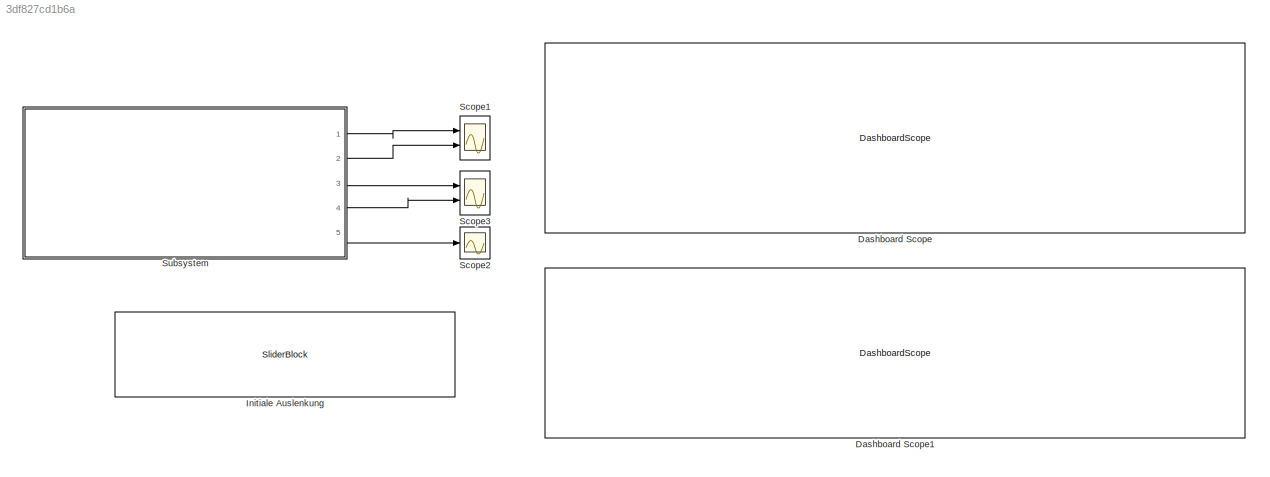
MODEL slx_3df827cd1b6a
KIND model
CONFIG AbsTol = auto
CONFIG EnableMultiTasking = off
CONFIG FixedStep = 0.01
CONFIG MaxStep = auto
CONFIG MinStep = auto
CONFIG RelTol = 1e-3
CONFIG SampleTimeConstraint = Unconstrained
CONFIG SolverName = FixedStepAuto
CONFIG StartTime = 0.0
CONFIG StopTime = 10
BLOCK [DashboardScope] Dashboard Scope
BLOCK [DashboardScope] Dashboard Scope1
BLOCK [SliderBlock] Initiale Auslenkung
  LabelPosition = Hide
  ScaleMax = 1.570796326794897
BLOCK [Scope] Scope1
  Floating = off
  NumInputPorts = 2
  Ports = [2]
  ScopeSpecificationString = Simulink.scopes.TimeScopeBlockCfg('CurrentConfiguration', extmgr.ConfigurationSet(extmgr.Configuration('Core','General UI',true),extmgr.Configuration('Core','Source UI',true),extmgr.Configuration('Sources','WiredSimulink',true,'DataLoggingVariableName','ScopeData1'),extmgr.Configuration('Visuals','Time Domain',true,'SerializedDisplays',{struct('MinYLimReal','-1.74473','MaxYLimReal','1.93919','YLab...<+1461ch>
BLOCK [Scope] Scope2
  Floating = off
  NumInputPorts = 1
  Ports = [1]
  ScopeSpecificationString = Simulink.scopes.TimeScopeBlockCfg('CurrentConfiguration', extmgr.ConfigurationSet(extmgr.Configuration('Core','General UI',true),extmgr.Configuration('Core','Source UI',true),extmgr.Configuration('Sources','WiredSimulink',true,'DataLoggingVariableName','ScopeData2'),extmgr.Configuration('Visuals','Time Domain',true),extmgr.Configuration('Tools','Plot Navigation',true),extmgr.Configuration('Tools',...<+40ch>
BLOCK [Scope] Scope3
  Floating = off
  NumInputPorts = 2
  Ports = [2]
  ScopeSpecificationString = Simulink.scopes.TimeScopeBlockCfg('CurrentConfiguration', extmgr.ConfigurationSet(extmgr.Configuration('Core','General UI',true),extmgr.Configuration('Core','Source UI',true),extmgr.Configuration('Sources','WiredSimulink',true),extmgr.Configuration('Visuals','Time Domain',true,'SerializedDisplays',{struct('MinYLimReal','-5.49798','MaxYLimReal','4.80628','YLabelReal','','MinYLimMag','0.00000','MaxY...<+1426ch>
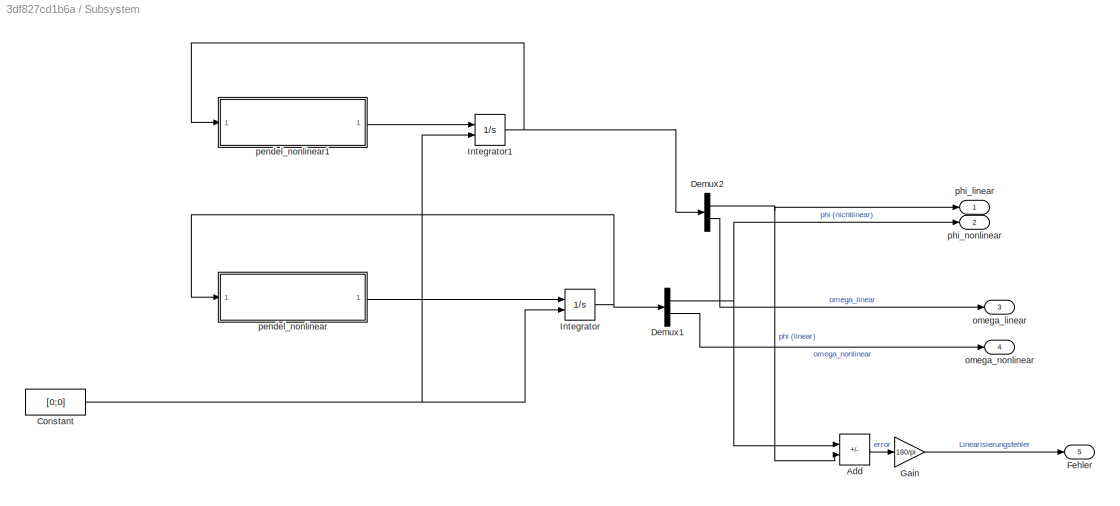
BLOCK [SubSystem] Subsystem
  Ports = [0, 5]
  RequestExecContextInheritance = off
BLOCK [Sum] Subsystem/Add
  IconShape = rectangular
  Inputs = +-
  Ports = [2, 1]
BLOCK [Constant] Subsystem/Constant
  Value = [0;0]
BLOCK [Demux] Subsystem/Demux1
  Outputs = 2
  Ports = [1, 2]
BLOCK [Demux] Subsystem/Demux2
  Outputs = 2
  Ports = [1, 2]
BLOCK [Outport] Subsystem/Fehler
  Port = 5
BLOCK [Gain] Subsystem/Gain
  Gain = 180/pi
BLOCK [Integrator] Subsystem/Integrator
  InitialCondition = [45*pi/180;0]
  InitialConditionSource = external
  Ports = [2, 1]
BLOCK [Integrator] Subsystem/Integrator1
  InitialCondition = [45*pi/180;0]
  InitialConditionSource = external
  Ports = [2, 1]
BLOCK [Outport] Subsystem/omega_linear
  Port = 3
BLOCK [Outport] Subsystem/omega_nonlinear
  Port = 4
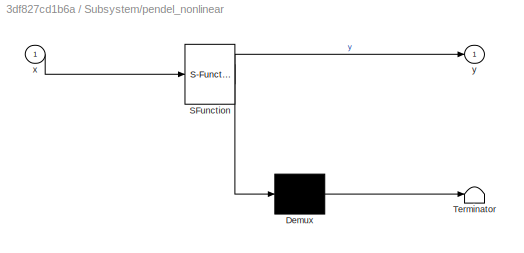
BLOCK [SubSystem] Subsystem/pendel_nonlinear
  ErrorFcn = Stateflow.Translate.translate
  PermitHierarchicalResolution = ExplicitOnly
  Ports = [1, 1]
  RequestExecContextInheritance = off
  SFBlockType = MATLAB Function
  TreatAsAtomicUnit = on
BLOCK [Demux] Subsystem/pendel_nonlinear/ Demux 
  Outputs = 1
  Ports = [1, 1]
BLOCK [S-Function] Subsystem/pendel_nonlinear/ SFunction 
  EnableBusSupport = on
  FunctionName = sf_sfun
  PortCounts = [1 2]
  Ports = [1, 2]
  SFcnIsStateOwnerBlock = off
  SFunctionDeploymentMode = off
  Tag = Stateflow S-Function 2
BLOCK [Terminator] Subsystem/pendel_nonlinear/ Terminator 
BLOCK [Inport] Subsystem/pendel_nonlinear/x
BLOCK [Outport] Subsystem/pendel_nonlinear/y
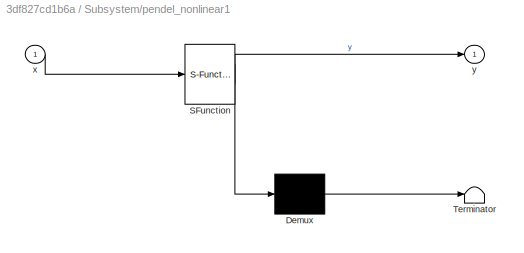
BLOCK [SubSystem] Subsystem/pendel_nonlinear1
  ErrorFcn = Stateflow.Translate.translate
  PermitHierarchicalResolution = ExplicitOnly
  Ports = [1, 1]
  RequestExecContextInheritance = off
  SFBlockType = MATLAB Function
  TreatAsAtomicUnit = on
BLOCK [Demux] Subsystem/pendel_nonlinear1/ Demux 
  Outputs = 1
  Ports = [1, 1]
BLOCK [S-Function] Subsystem/pendel_nonlinear1/ SFunction 
  EnableBusSupport = on
  FunctionName = sf_sfun
  PortCounts = [1 2]
  Ports = [1, 2]
  SFcnIsStateOwnerBlock = off
  SFunctionDeploymentMode = off
  Tag = Stateflow S-Function 1
BLOCK [Terminator] Subsystem/pendel_nonlinear1/ Terminator 
BLOCK [Inport] Subsystem/pendel_nonlinear1/x
BLOCK [Outport] Subsystem/pendel_nonlinear1/y
BLOCK [Outport] Subsystem/phi_linear
BLOCK [Outport] Subsystem/phi_nonlinear
  Port = 2
LINE Subsystem/Add:1 -> Subsystem/Gain:1
NET Subsystem/Constant:1 -> Subsystem/Integrator1:2, Subsystem/Integrator:2
NET Subsystem/Demux1:1 -> Subsystem/Add:1, Subsystem/phi_nonlinear:1
LINE Subsystem/Demux1:2 -> Subsystem/omega_nonlinear:1
NET Subsystem/Demux2:1 -> Subsystem/Add:2, Subsystem/phi_linear:1
LINE Subsystem/Demux2:2 -> Subsystem/omega_linear:1
LINE Subsystem/Gain:1 -> Subsystem/Fehler:1
NET Subsystem/Integrator1:1 -> Subsystem/Demux2:1, Subsystem/pendel_nonlinear1:1
NET Subsystem/Integrator:1 -> Subsystem/Demux1:1, Subsystem/pendel_nonlinear:1
LINE Subsystem/pendel_nonlinear1:1 -> Subsystem/Integrator1:1
LINE Subsystem/pendel_nonlinear:1 -> Subsystem/Integrator:1
LINE Subsystem:1 -> Scope1:1
LINE Subsystem:2 -> Scope1:2
LINE Subsystem:3 -> Scope3:1
LINE Subsystem:4 -> Scope3:2
LINE Subsystem:5 -> Scope2:1
note: NET lines group one-source signal fan-out (src -> all destinations, sorted); 1:1 wires keep LINE
CHART Subsystem/pendel_nonlinear states=1 transitions=1
  STATE_LABEL 'eML_blk_kernel()'
  STATE_LABEL 'SCRIPT:\nfunction y = pendel_nonlinear(x)\n\n\nc = 0.2;\nl = 1;\nm = 1;\ng = 9.81;\n\ny = [0 1; 0 -c/m]*x+ [0; -g/l*sin(x(1))];\n'
CHART Subsystem/pendel_nonlinear1 states=1 transitions=1
  STATE_LABEL 'eML_blk_kernel()'
  STATE_LABEL 'SCRIPT:\nfunction y = pendel_linear(x)\n\n\nc = 0.2;\nl = 1;\nm = 1;\ng = 9.81;\n\ny =  [              0,    1;\n     -g/l, -c/m]*x;\n'
CHART  states=0 transitions=0
CHART  states=0 transitions=0
